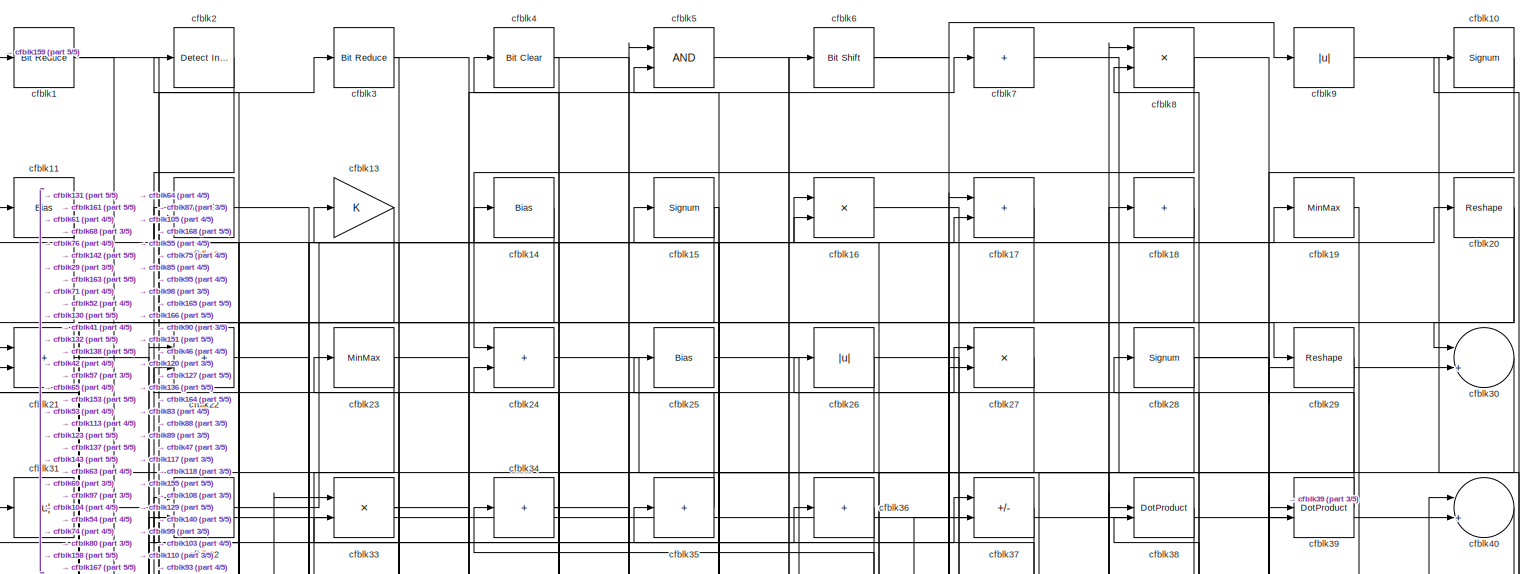
[diagram: root canvas - part 1/5, full width, top band]
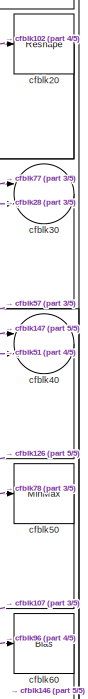
[diagram: root canvas - part 2/5, top right region]
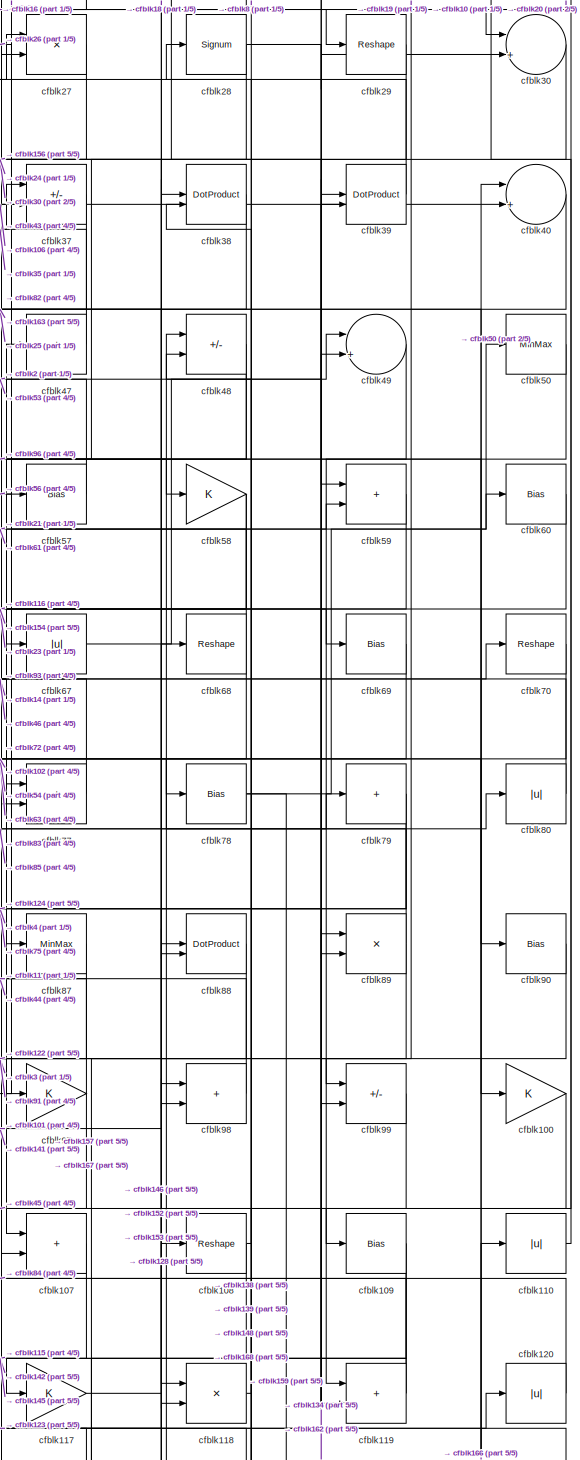
[diagram: root canvas - part 3/5, middle right region]
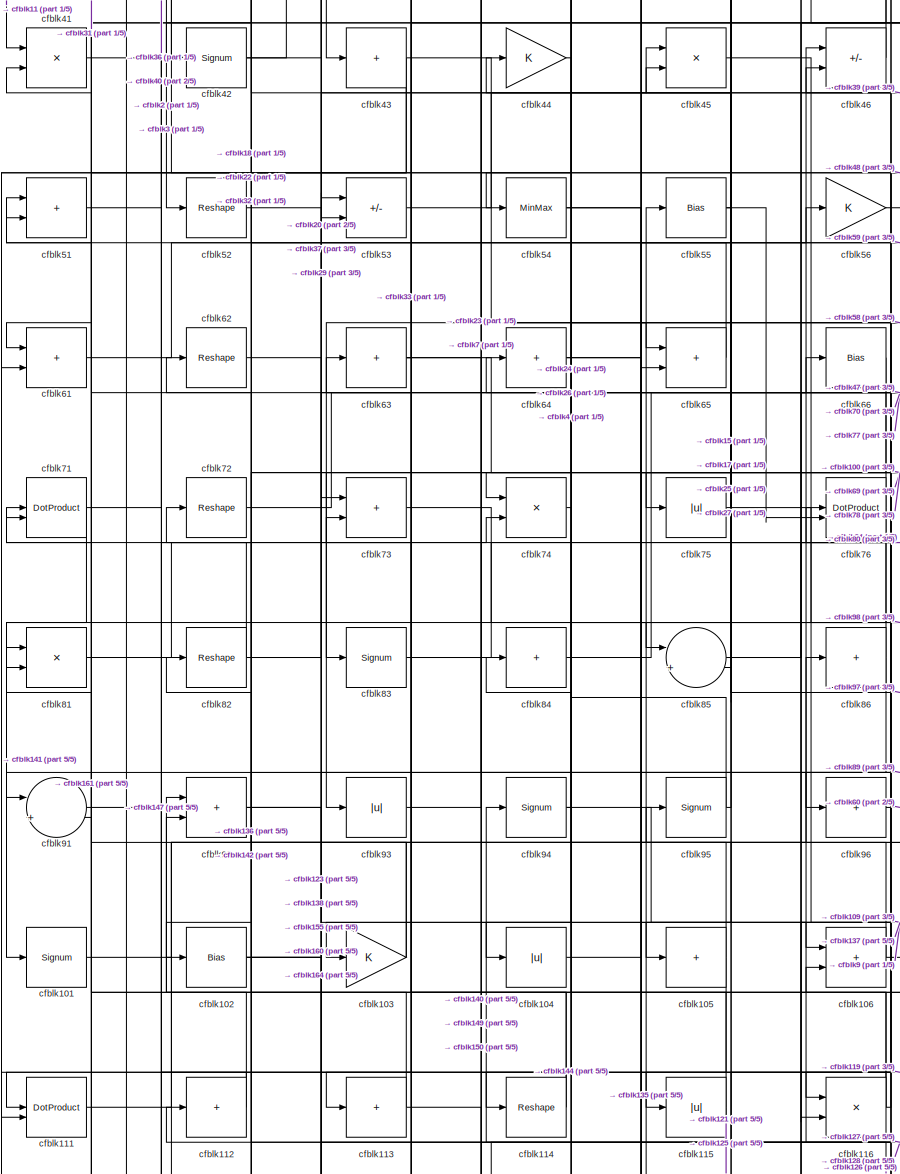
[diagram: root canvas - part 4/5, middle left region]
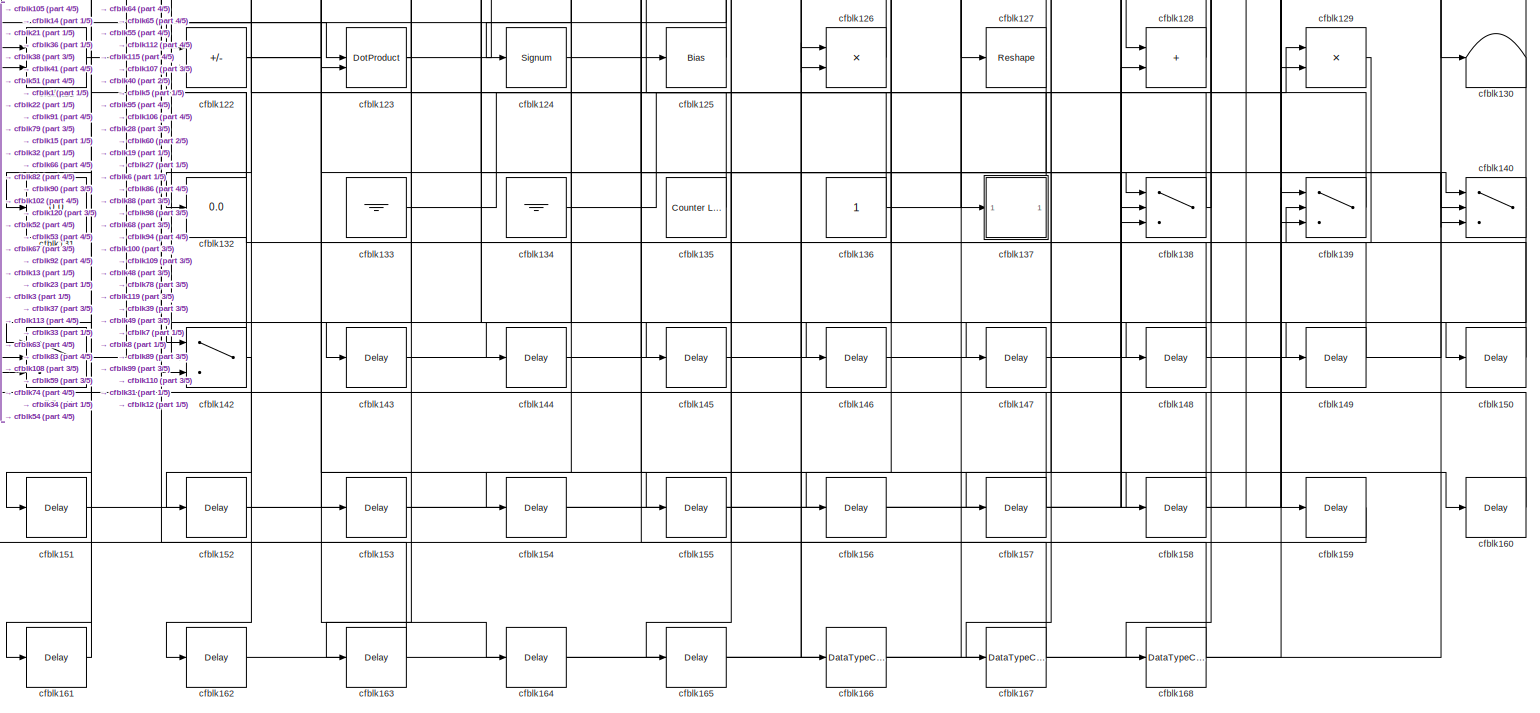
[diagram: root canvas - part 5/5, full width, bottom band]
MODEL slx_1eb7c08d7cda
KIND model
CONFIG AbsTol = auto
CONFIG EnableMultiTasking = off
CONFIG FixedStep = auto
CONFIG MaxStep = auto
CONFIG MinStep = auto
CONFIG RelTol = 1e-3
CONFIG SampleTimeConstraint = Unconstrained
CONFIG SolverName = VariableStepAuto
CONFIG StartTime = 0.0
CONFIG StopTime = 10.0
BLOCK [Reference] cfblk1  REF=hdlsllib/Logic and Bit
Operations/Bit Reduce
  SourceBlock = hdlsllib/Logic and Bit\nOperations/Bit Reduce
  SourceType = Bit Reduce
BLOCK [Signum] cfblk10
BLOCK [Gain] cfblk100
BLOCK [Signum] cfblk101
BLOCK [Bias] cfblk102
  Bias = 0.0
  SaturateOnIntegerOverflow = off
BLOCK [Gain] cfblk103
BLOCK [Abs] cfblk104
  SaturateOnIntegerOverflow = off
BLOCK [Sum] cfblk105
  IconShape = rectangular
  Inputs = +
BLOCK [Sum] cfblk106
  IconShape = rectangular
BLOCK [Sum] cfblk107
  IconShape = rectangular
BLOCK [Reshape] cfblk108
BLOCK [Bias] cfblk109
  Bias = 0.0
  SaturateOnIntegerOverflow = off
BLOCK [Bias] cfblk11
  Bias = 0.0
  SaturateOnIntegerOverflow = off
BLOCK [Abs] cfblk110
  SaturateOnIntegerOverflow = off
BLOCK [DotProduct] cfblk111
  OutDataTypeStr = Inherit: Inherit via internal rule
BLOCK [Sum] cfblk112
  IconShape = rectangular
  Inputs = +
BLOCK [Sum] cfblk113
  IconShape = rectangular
  Inputs = +
BLOCK [Reshape] cfblk114
BLOCK [Abs] cfblk115
  SaturateOnIntegerOverflow = off
BLOCK [Product] cfblk116
  Inputs = */
  RndMeth = Zero
  SaturateOnIntegerOverflow = on
BLOCK [Gain] cfblk117
BLOCK [Product] cfblk118
  Inputs = */
  RndMeth = Zero
  SaturateOnIntegerOverflow = on
BLOCK [Sum] cfblk119
  IconShape = rectangular
BLOCK [DotProduct] cfblk12
  OutDataTypeStr = Inherit: Inherit via internal rule
BLOCK [Abs] cfblk120
  SaturateOnIntegerOverflow = off
BLOCK [Product] cfblk121
  Inputs = */
  RndMeth = Zero
  SaturateOnIntegerOverflow = on
BLOCK [Sum] cfblk122
  IconShape = rectangular
  Inputs = +-
BLOCK [DotProduct] cfblk123
  OutDataTypeStr = Inherit: Inherit via internal rule
BLOCK [Signum] cfblk124
BLOCK [Bias] cfblk125
  Bias = 0.0
  SaturateOnIntegerOverflow = off
BLOCK [Product] cfblk126
  Inputs = */
  RndMeth = Zero
  SaturateOnIntegerOverflow = on
BLOCK [Reshape] cfblk127
BLOCK [Sum] cfblk128
  IconShape = rectangular
BLOCK [Product] cfblk129
  Inputs = */
  RndMeth = Zero
  SaturateOnIntegerOverflow = on
BLOCK [Gain] cfblk13
BLOCK [Terminator] cfblk130
BLOCK [Display] cfblk131
  Decimation = 1
BLOCK [Display] cfblk132
  Decimation = 1
BLOCK [Ground] cfblk133
BLOCK [Ground] cfblk134
BLOCK [Reference] cfblk135  REF=hdlsllib/Sources/Counter
Limited
  SourceBlock = hdlsllib/Sources/Counter\nLimited
  SourceType = Counter Limited
BLOCK [Constant] cfblk136
  SampleTime = -1
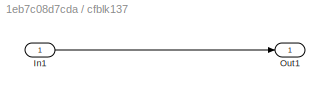
BLOCK [SubSystem] cfblk137
  LibrarySourceBlock = hdlsllib/Ports &\nSubsystems/Subsystem
BLOCK [Inport] cfblk137/In1
BLOCK [Outport] cfblk137/Out1
BLOCK [Switch] cfblk138
  InputSameDT = off
  SaturateOnIntegerOverflow = off
BLOCK [Switch] cfblk139
  InputSameDT = off
  SaturateOnIntegerOverflow = off
BLOCK [Bias] cfblk14
  Bias = 0.0
  SaturateOnIntegerOverflow = off
BLOCK [Switch] cfblk140
  InputSameDT = off
  SaturateOnIntegerOverflow = off
BLOCK [Switch] cfblk141
  InputSameDT = off
  SaturateOnIntegerOverflow = off
BLOCK [Switch] cfblk142
  InputSameDT = off
  SaturateOnIntegerOverflow = off
BLOCK [Delay] cfblk143
  InputPortMap = u0
  SampleTime = 1
BLOCK [Delay] cfblk144
  InputPortMap = u0
  SampleTime = 1
BLOCK [Delay] cfblk145
  InputPortMap = u0
  SampleTime = 1
BLOCK [Delay] cfblk146
  InputPortMap = u0
  SampleTime = 1
BLOCK [Delay] cfblk147
  InputPortMap = u0
  SampleTime = 1
BLOCK [Delay] cfblk148
  InputPortMap = u0
  SampleTime = 1
BLOCK [Delay] cfblk149
  InputPortMap = u0
  SampleTime = 1
BLOCK [Signum] cfblk15
BLOCK [Delay] cfblk150
  InputPortMap = u0
  SampleTime = 1
BLOCK [Delay] cfblk151
  InputPortMap = u0
  SampleTime = 1
BLOCK [Delay] cfblk152
  InputPortMap = u0
  SampleTime = 1
BLOCK [Delay] cfblk153
  InputPortMap = u0
  SampleTime = 1
BLOCK [Delay] cfblk154
  InputPortMap = u0
  SampleTime = 1
BLOCK [Delay] cfblk155
  InputPortMap = u0
  SampleTime = 1
BLOCK [Delay] cfblk156
  InputPortMap = u0
  SampleTime = 1
BLOCK [Delay] cfblk157
  InputPortMap = u0
  SampleTime = 1
BLOCK [Delay] cfblk158
  InputPortMap = u0
  SampleTime = 1
BLOCK [Delay] cfblk159
  InputPortMap = u0
  SampleTime = 1
BLOCK [Product] cfblk16
  Inputs = */
  RndMeth = Zero
  SaturateOnIntegerOverflow = on
BLOCK [Delay] cfblk160
  InputPortMap = u0
  SampleTime = 1
BLOCK [Delay] cfblk161
  InputPortMap = u0
  SampleTime = 1
BLOCK [Delay] cfblk162
  InputPortMap = u0
  SampleTime = 1
BLOCK [Delay] cfblk163
  InputPortMap = u0
  SampleTime = 1
BLOCK [Delay] cfblk164
  InputPortMap = u0
  SampleTime = 1
BLOCK [Delay] cfblk165
  InputPortMap = u0
  SampleTime = 1
BLOCK [DataTypeConversion] cfblk166
  OutDataTypeStr = uint8
  RndMeth = Floor
  SaturateOnIntegerOverflow = off
BLOCK [DataTypeConversion] cfblk167
  OutDataTypeStr = uint8
  RndMeth = Floor
  SaturateOnIntegerOverflow = off
BLOCK [DataTypeConversion] cfblk168
  OutDataTypeStr = uint8
  RndMeth = Floor
  SaturateOnIntegerOverflow = off
BLOCK [Sum] cfblk17
  IconShape = rectangular
BLOCK [Sum] cfblk18
  IconShape = rectangular
  Inputs = +
BLOCK [MinMax] cfblk19
BLOCK [Reference] cfblk2  REF=simulink/Logic and Bit
Operations/Detect
Increase
  LibrarySourceBlock = hdlsllib/Logic and Bit\nOperations/Detect\nIncrease
  SourceBlock = simulink/Logic and Bit\nOperations/Detect\nIncrease
  SourceType = Detect Increase
BLOCK [Reshape] cfblk20
BLOCK [Sum] cfblk21
  IconShape = rectangular
BLOCK [Sum] cfblk22
  IconShape = rectangular
BLOCK [MinMax] cfblk23
BLOCK [Sum] cfblk24
  IconShape = rectangular
BLOCK [Bias] cfblk25
  Bias = 0.0
  SaturateOnIntegerOverflow = off
BLOCK [Abs] cfblk26
  SaturateOnIntegerOverflow = off
BLOCK [Product] cfblk27
  Inputs = */
  RndMeth = Zero
  SaturateOnIntegerOverflow = on
BLOCK [Signum] cfblk28
BLOCK [Reshape] cfblk29
BLOCK [Reference] cfblk3  REF=hdlsllib/Logic and Bit
Operations/Bit Reduce
  SourceBlock = hdlsllib/Logic and Bit\nOperations/Bit Reduce
  SourceType = Bit Reduce
BLOCK [Sum] cfblk30
  Inputs = |++
BLOCK [Abs] cfblk31
  SaturateOnIntegerOverflow = off
BLOCK [Product] cfblk32
  Inputs = */
  RndMeth = Zero
  SaturateOnIntegerOverflow = on
BLOCK [Product] cfblk33
  Inputs = */
  RndMeth = Zero
  SaturateOnIntegerOverflow = on
BLOCK [Sum] cfblk34
  IconShape = rectangular
  Inputs = +
BLOCK [Sum] cfblk35
  IconShape = rectangular
  Inputs = +
BLOCK [Sum] cfblk36
  IconShape = rectangular
  Inputs = +
BLOCK [Sum] cfblk37
  IconShape = rectangular
  Inputs = +-
BLOCK [DotProduct] cfblk38
  OutDataTypeStr = Inherit: Inherit via internal rule
BLOCK [DotProduct] cfblk39
  OutDataTypeStr = Inherit: Inherit via internal rule
BLOCK [Reference] cfblk4  REF=simulink/Logic and Bit
Operations/Bit Clear
  LibrarySourceBlock = hdlsllib/Logic and Bit\nOperations/Bit Clear
  SourceBlock = simulink/Logic and Bit\nOperations/Bit Clear
  SourceType = Bit Clear
BLOCK [Sum] cfblk40
  Inputs = |++
BLOCK [Product] cfblk41
  Inputs = */
  RndMeth = Zero
  SaturateOnIntegerOverflow = on
BLOCK [Signum] cfblk42
BLOCK [Sum] cfblk43
  IconShape = rectangular
  Inputs = +
BLOCK [Gain] cfblk44
BLOCK [Product] cfblk45
  Inputs = */
  RndMeth = Zero
  SaturateOnIntegerOverflow = on
BLOCK [Sum] cfblk46
  IconShape = rectangular
  Inputs = +-
BLOCK [Sum] cfblk47
  IconShape = rectangular
  Inputs = +
BLOCK [Sum] cfblk48
  IconShape = rectangular
  Inputs = +-
BLOCK [Sum] cfblk49
  Inputs = |++
BLOCK [Logic] cfblk5
  AllPortsSameDT = off
  OutDataTypeStr = boolean
BLOCK [MinMax] cfblk50
BLOCK [Sum] cfblk51
  IconShape = rectangular
BLOCK [Reshape] cfblk52
BLOCK [Sum] cfblk53
  IconShape = rectangular
  Inputs = +-
BLOCK [MinMax] cfblk54
BLOCK [Bias] cfblk55
  Bias = 0.0
  SaturateOnIntegerOverflow = off
BLOCK [Gain] cfblk56
BLOCK [Bias] cfblk57
  Bias = 0.0
  SaturateOnIntegerOverflow = off
BLOCK [Gain] cfblk58
BLOCK [Sum] cfblk59
  IconShape = rectangular
BLOCK [Reference] cfblk6  REF=hdlsllib/Logic and Bit
Operations/Bit Shift
  SourceBlock = hdlsllib/Logic and Bit\nOperations/Bit Shift
  SourceType = Bit Shift
BLOCK [Bias] cfblk60
  Bias = 0.0
  SaturateOnIntegerOverflow = off
BLOCK [Sum] cfblk61
  IconShape = rectangular
BLOCK [Reshape] cfblk62
BLOCK [Sum] cfblk63
  IconShape = rectangular
  Inputs = +
BLOCK [Sum] cfblk64
  IconShape = rectangular
  Inputs = +
BLOCK [Sum] cfblk65
  IconShape = rectangular
BLOCK [Bias] cfblk66
  Bias = 0.0
  SaturateOnIntegerOverflow = off
BLOCK [Abs] cfblk67
  SaturateOnIntegerOverflow = off
BLOCK [Reshape] cfblk68
BLOCK [Bias] cfblk69
  Bias = 0.0
  SaturateOnIntegerOverflow = off
BLOCK [Sum] cfblk7
  IconShape = rectangular
  Inputs = +
BLOCK [Reshape] cfblk70
BLOCK [DotProduct] cfblk71
  OutDataTypeStr = Inherit: Inherit via internal rule
BLOCK [Reshape] cfblk72
BLOCK [Sum] cfblk73
  IconShape = rectangular
BLOCK [Product] cfblk74
  Inputs = */
  RndMeth = Zero
  SaturateOnIntegerOverflow = on
BLOCK [Abs] cfblk75
  SaturateOnIntegerOverflow = off
BLOCK [DotProduct] cfblk76
  OutDataTypeStr = Inherit: Inherit via internal rule
BLOCK [Sum] cfblk77
  IconShape = rectangular
BLOCK [Bias] cfblk78
  Bias = 0.0
  SaturateOnIntegerOverflow = off
BLOCK [Sum] cfblk79
  IconShape = rectangular
  Inputs = +
BLOCK [Product] cfblk8
  Inputs = */
  RndMeth = Zero
  SaturateOnIntegerOverflow = on
BLOCK [Abs] cfblk80
  SaturateOnIntegerOverflow = off
BLOCK [Product] cfblk81
  Inputs = */
  RndMeth = Zero
  SaturateOnIntegerOverflow = on
BLOCK [Reshape] cfblk82
BLOCK [Signum] cfblk83
BLOCK [Sum] cfblk84
  IconShape = rectangular
  Inputs = +
BLOCK [Sum] cfblk85
  Inputs = |++
BLOCK [Sum] cfblk86
  IconShape = rectangular
  Inputs = +
BLOCK [MinMax] cfblk87
BLOCK [DotProduct] cfblk88
  OutDataTypeStr = Inherit: Inherit via internal rule
BLOCK [Product] cfblk89
  Inputs = */
  RndMeth = Zero
  SaturateOnIntegerOverflow = on
BLOCK [Abs] cfblk9
  SaturateOnIntegerOverflow = off
BLOCK [Bias] cfblk90
  Bias = 0.0
  SaturateOnIntegerOverflow = off
BLOCK [Sum] cfblk91
  Inputs = |++
BLOCK [Sum] cfblk92
  IconShape = rectangular
BLOCK [Abs] cfblk93
  SaturateOnIntegerOverflow = off
BLOCK [Signum] cfblk94
BLOCK [Signum] cfblk95
BLOCK [Sum] cfblk96
  IconShape = rectangular
  Inputs = +
BLOCK [Gain] cfblk97
BLOCK [Sum] cfblk98
  IconShape = rectangular
BLOCK [Sum] cfblk99
  IconShape = rectangular
  Inputs = +-
LINE cfblk100:1 -> cfblk148:1
LINE cfblk101:1 -> cfblk77:1
NET cfblk102:1 -> cfblk138:2, cfblk160:1, cfblk20:1
NET cfblk103:1 -> cfblk32:2, cfblk72:1
LINE cfblk104:1 -> cfblk56:1
NET cfblk105:1 -> cfblk141:3, cfblk24:2
NET cfblk106:1 -> cfblk37:2, cfblk51:1
LINE cfblk107:1 -> cfblk145:1
NET cfblk108:1 -> cfblk157:1, cfblk8:2
NET cfblk109:1 -> cfblk142:3, cfblk168:1
LINE cfblk10:1 -> cfblk99:2
LINE cfblk110:1 -> cfblk10:1
LINE cfblk111:1 -> cfblk46:1
NET cfblk112:1 -> cfblk111:1, cfblk92:2
NET cfblk113:1 -> cfblk150:1, cfblk71:2
NET cfblk114:1 -> cfblk73:2, cfblk92:1
NET cfblk115:1 -> cfblk121:2, cfblk63:1
NET cfblk116:1 -> cfblk62:1, cfblk76:1, cfblk81:2
LINE cfblk117:1 -> cfblk18:1
LINE cfblk118:1 -> cfblk28:1
NET cfblk119:1 -> cfblk115:1, cfblk84:1
LINE cfblk11:1 -> cfblk41:1
LINE cfblk120:1 -> cfblk16:1
LINE cfblk121:1 -> cfblk123:1
NET cfblk122:1 -> cfblk120:1, cfblk67:1
NET cfblk123:1 -> cfblk108:1, cfblk23:1
LINE cfblk124:1 -> cfblk125:1
LINE cfblk125:1 -> cfblk112:1
LINE cfblk126:1 -> cfblk95:1
NET cfblk127:1 -> cfblk165:1, cfblk86:1
LINE cfblk128:1 -> cfblk94:1
LINE cfblk129:1 -> cfblk139:2
LINE cfblk12:1 -> cfblk153:1
LINE cfblk133:1 -> cfblk129:1
LINE cfblk134:1 -> cfblk89:1
LINE cfblk135:1 -> cfblk55:1
NET cfblk136:1 -> cfblk19:1, cfblk82:1
LINE cfblk137/In1:1 -> cfblk137/Out1:1
LINE cfblk137:1 -> cfblk13:1
NET cfblk138:1 -> cfblk32:1, cfblk48:2
LINE cfblk139:1 -> cfblk38:2
LINE cfblk13:1 -> cfblk131:1
NET cfblk140:1 -> cfblk12:2, cfblk152:1
NET cfblk141:1 -> cfblk68:1, cfblk79:1
NET cfblk142:1 -> cfblk162:1, cfblk21:1
LINE cfblk143:1 -> cfblk128:2
LINE cfblk144:1 -> cfblk65:2
LINE cfblk145:1 -> cfblk126:1
LINE cfblk146:1 -> cfblk88:1
LINE cfblk147:1 -> cfblk40:1
LINE cfblk148:1 -> cfblk122:2
LINE cfblk149:1 -> cfblk106:2
LINE cfblk14:1 -> cfblk161:1
LINE cfblk150:1 -> cfblk53:1
LINE cfblk151:1 -> cfblk139:1
LINE cfblk152:1 -> cfblk98:1
LINE cfblk153:1 -> cfblk38:1
LINE cfblk154:1 -> cfblk39:1
LINE cfblk155:1 -> cfblk8:1
LINE cfblk156:1 -> cfblk119:2
LINE cfblk157:1 -> cfblk141:2
LINE cfblk158:1 -> cfblk121:1
LINE cfblk159:1 -> cfblk1:1
NET cfblk15:1 -> cfblk105:1, cfblk132:1
LINE cfblk160:1 -> cfblk41:2
LINE cfblk161:1 -> cfblk51:2
LINE cfblk162:1 -> cfblk49:2
LINE cfblk163:1 -> cfblk22:1
LINE cfblk164:1 -> cfblk27:2
LINE cfblk165:1 -> cfblk6:1
LINE cfblk166:1 -> cfblk110:1
LINE cfblk167:1 -> cfblk5:1
LINE cfblk168:1 -> cfblk5:2
LINE cfblk16:1 -> cfblk89:2
LINE cfblk17:1 -> cfblk85:2
LINE cfblk18:1 -> cfblk42:1
LINE cfblk19:1 -> cfblk99:1
NET cfblk1:1 -> cfblk142:2, cfblk29:1
NET cfblk20:1 -> cfblk30:1, cfblk77:2
LINE cfblk21:1 -> cfblk117:1
LINE cfblk22:1 -> cfblk53:2
NET cfblk23:1 -> cfblk61:1, cfblk69:1
LINE cfblk24:1 -> cfblk118:1
LINE cfblk25:1 -> cfblk90:1
NET cfblk26:1 -> cfblk104:1, cfblk88:2
LINE cfblk27:1 -> cfblk75:1
NET cfblk28:1 -> cfblk156:1, cfblk30:2, cfblk59:1
LINE cfblk29:1 -> cfblk43:1
LINE cfblk2:1 -> cfblk52:1
LINE cfblk30:1 -> cfblk57:1
LINE cfblk31:1 -> cfblk130:1
LINE cfblk32:1 -> cfblk16:2
NET cfblk33:1 -> cfblk113:1, cfblk140:2
NET cfblk34:1 -> cfblk158:1, cfblk54:1
LINE cfblk35:1 -> cfblk12:1
LINE cfblk36:1 -> cfblk151:1
LINE cfblk37:1 -> cfblk163:1
LINE cfblk38:1 -> cfblk141:1
LINE cfblk39:1 -> cfblk26:1
NET cfblk3:1 -> cfblk143:1, cfblk97:1
LINE cfblk40:1 -> cfblk126:2
LINE cfblk41:1 -> cfblk3:1
NET cfblk42:1 -> cfblk17:2, cfblk33:1
NET cfblk43:1 -> cfblk111:2, cfblk61:2, cfblk65:1
LINE cfblk44:1 -> cfblk114:1
LINE cfblk45:1 -> cfblk109:1
LINE cfblk46:1 -> cfblk34:1
LINE cfblk47:1 -> cfblk35:1
NET cfblk48:1 -> cfblk91:1, cfblk96:1
LINE cfblk49:1 -> cfblk119:1
NET cfblk4:1 -> cfblk74:1, cfblk87:1
LINE cfblk50:1 -> cfblk107:1
LINE cfblk51:1 -> cfblk40:2
LINE cfblk52:1 -> cfblk155:1
LINE cfblk53:1 -> cfblk39:2
NET cfblk54:1 -> cfblk138:1, cfblk78:1
NET cfblk55:1 -> cfblk15:1, cfblk76:2
LINE cfblk56:1 -> cfblk58:1
LINE cfblk57:1 -> cfblk2:1
NET cfblk58:1 -> cfblk116:1, cfblk93:1
LINE cfblk59:1 -> cfblk154:1
LINE cfblk5:1 -> cfblk166:1
LINE cfblk60:1 -> cfblk146:1
LINE cfblk61:1 -> cfblk59:2
LINE cfblk62:1 -> cfblk73:1
NET cfblk63:1 -> cfblk100:1, cfblk149:1, cfblk33:2
NET cfblk64:1 -> cfblk138:3, cfblk27:1
LINE cfblk65:1 -> cfblk22:2
LINE cfblk66:1 -> cfblk142:1
LINE cfblk67:1 -> cfblk49:1
NET cfblk68:1 -> cfblk128:1, cfblk21:2
LINE cfblk69:1 -> cfblk83:1
NET cfblk6:1 -> cfblk127:1, cfblk9:1
LINE cfblk70:1 -> cfblk102:1
NET cfblk71:1 -> cfblk36:1, cfblk81:1
LINE cfblk72:1 -> cfblk47:1
LINE cfblk73:1 -> cfblk85:1
LINE cfblk74:1 -> cfblk144:1
LINE cfblk75:1 -> cfblk98:2
NET cfblk76:1 -> cfblk101:1, cfblk31:1
LINE cfblk77:1 -> cfblk46:2
NET cfblk78:1 -> cfblk159:1, cfblk50:1
NET cfblk79:1 -> cfblk118:2, cfblk124:1
LINE cfblk7:1 -> cfblk129:2
LINE cfblk80:1 -> cfblk14:1
LINE cfblk81:1 -> cfblk74:2
NET cfblk82:1 -> cfblk37:1, cfblk45:1, cfblk71:1
NET cfblk83:1 -> cfblk140:1, cfblk17:1
LINE cfblk84:1 -> cfblk66:1
NET cfblk85:1 -> cfblk70:1, cfblk80:1
NET cfblk86:1 -> cfblk123:2, cfblk45:2
LINE cfblk87:1 -> cfblk107:2
LINE cfblk88:1 -> cfblk167:1
NET cfblk89:1 -> cfblk48:1, cfblk91:2
NET cfblk8:1 -> cfblk140:3, cfblk24:1
LINE cfblk90:1 -> cfblk122:1
LINE cfblk91:1 -> cfblk147:1
NET cfblk92:1 -> cfblk106:1, cfblk164:1
LINE cfblk93:1 -> cfblk7:1
NET cfblk94:1 -> cfblk137:1, cfblk64:1
NET cfblk95:1 -> cfblk25:1, cfblk4:1
LINE cfblk96:1 -> cfblk60:1
NET cfblk97:1 -> cfblk116:2, cfblk44:1
LINE cfblk98:1 -> cfblk11:1
LINE cfblk99:1 -> cfblk139:3
LINE cfblk9:1 -> cfblk103:1
note: NET lines group one-source signal fan-out (src -> all destinations, sorted); 1:1 wires keep LINE
